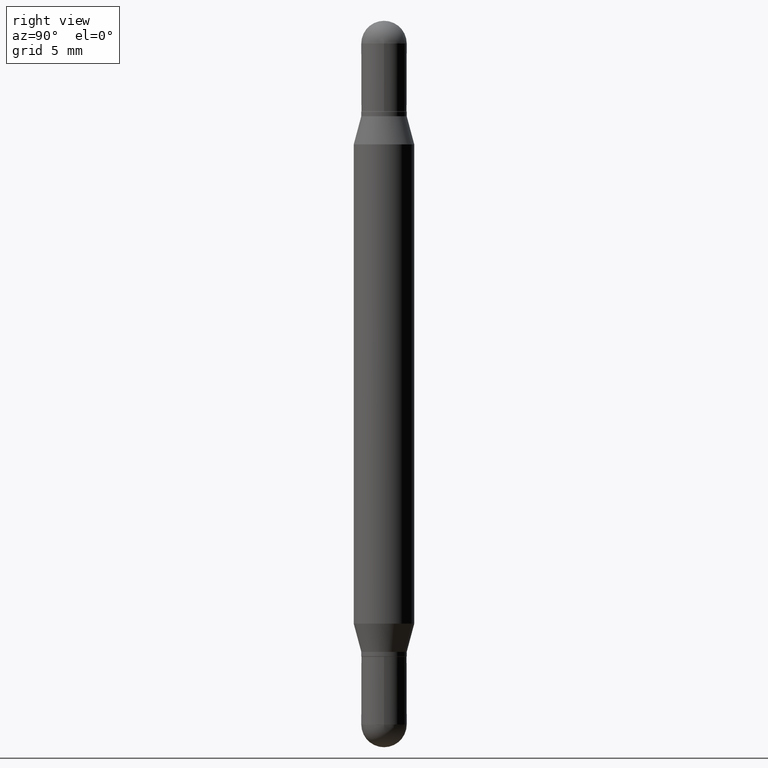
[diagram: clean part render]
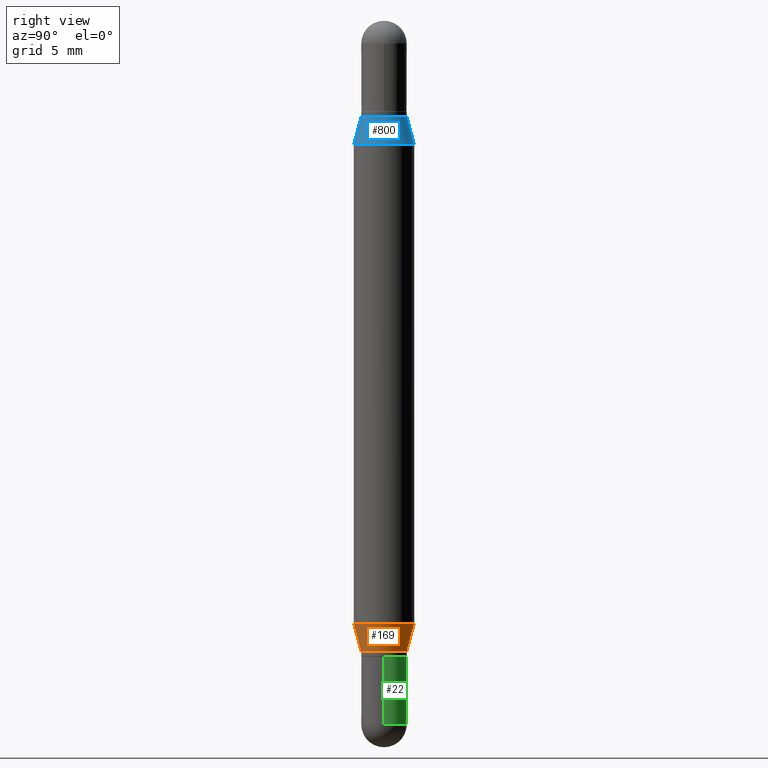
[diagram: same view with three faces highlighted in distinct colors, each labeled with its STEP entity id]
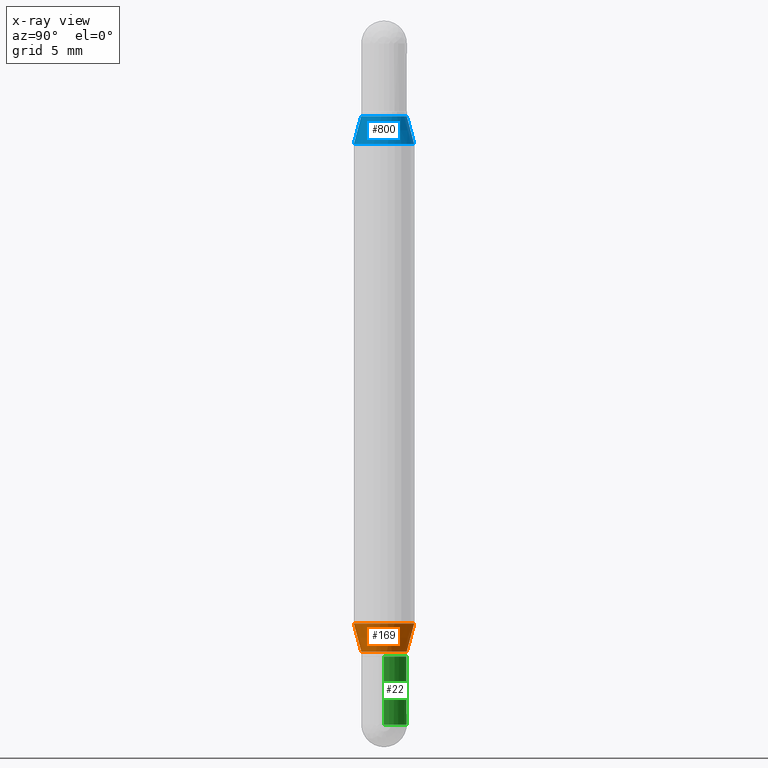
[diagram: x-ray of the same camera — body ghosted, the three highlighted faces saturated]
A machine part, right view with three faces highlighted in distinct colors.
The next image is the same camera in x-ray (body ghosted, the three faces saturated) — at least one of them is partly hidden behind the body in this view.
Their STEP definitions:

[orange] entity #169 — the highlighted conical surface has half-angle 15 deg.
#61 = DIRECTION ( 'NONE',  ( -2.445369915949094661E-29, 3.491622955289640128E-15, 1.000000000000000000 ) ) ;
#129 = VERTEX_POINT ( 'NONE', #799 ) ;
#135 = DIRECTION ( 'NONE',  ( -2.445369915949094661E-29, 3.491622955289640128E-15, 1.000000000000000000 ) ) ;
#140 = AXIS2_PLACEMENT_3D ( 'NONE', #400, #135, #664 ) ;
#164 = CARTESIAN_POINT ( 'NONE',  ( 3.043947582075560243E-29, -4.346302448130172457E-15, -1.244780007401925737 ) ) ;
#166 = EDGE_CURVE ( 'NONE', #490, #670, #1040, .T. ) ;
#169 = ADVANCED_FACE ( 'NONE', ( #493 ), #1025, .T. ) ;
#247 = ORIENTED_EDGE ( 'NONE', *, *, #166, .F. ) ;
#299 = VECTOR ( 'NONE', #942, 39.37007874015747433 ) ;
#319 = EDGE_CURVE ( 'NONE', #615, #490, #604, .T. ) ;
#343 = CIRCLE ( 'NONE', #140, 0.04689999999999991398 ) ;
#373 = AXIS2_PLACEMENT_3D ( 'NONE', #164, #61, #407 ) ;
#397 = CARTESIAN_POINT ( 'NONE',  ( 3.186317000481670584E-29, -4.549584710742400946E-15, -1.302999999999999936 ) ) ;
#400 = CARTESIAN_POINT ( 'NONE',  ( 3.186317000481670584E-29, -4.549584710742400946E-15, -1.302999999999999936 ) ) ;
#405 = ORIENTED_EDGE ( 'NONE', *, *, #319, .F. ) ;
#407 = DIRECTION ( 'NONE',  ( -6.982962677686265922E-15, -1.000000000000000000, 4.370956789862821150E-15 ) ) ;
#416 = LINE ( 'NONE', #651, #501 ) ;
#474 = CARTESIAN_POINT ( 'NONE',  ( 4.287811248607390144E-16, 0.06249999999999565625, -1.244780007401925959 ) ) ;
#490 = VERTEX_POINT ( 'NONE', #977 ) ;
#493 = FACE_OUTER_BOUND ( 'NONE', #845, .T. ) ;
#501 = VECTOR ( 'NONE', #836, 39.37007874015748854 ) ;
#595 = DIRECTION ( 'NONE',  ( -6.982962677686266711E-15, -1.000000000000000000, 5.824835807386499253E-15 ) ) ;
#600 = CARTESIAN_POINT ( 'NONE',  ( -3.275009495834534605E-16, -0.04690000000000446589, -1.302999999999999714 ) ) ;
#603 = EDGE_CURVE ( 'NONE', #615, #129, #343, .T. ) ;
#604 = LINE ( 'NONE', #600, #299 ) ;
#615 = VERTEX_POINT ( 'NONE', #647 ) ;
#647 = CARTESIAN_POINT ( 'NONE',  ( -3.275009495834534605E-16, -0.04690000000000446589, -1.302999999999999714 ) ) ;
#651 = CARTESIAN_POINT ( 'NONE',  ( 3.332445430715181769E-16, 0.04689999999999536207, -1.303000000000000380 ) ) ;
#664 = DIRECTION ( 'NONE',  ( -6.982962677686266711E-15, -1.000000000000000000, 5.824835807386499253E-15 ) ) ;
#669 = ORIENTED_EDGE ( 'NONE', *, *, #603, .T. ) ;
#670 = VERTEX_POINT ( 'NONE', #474 ) ;
#796 = EDGE_CURVE ( 'NONE', #129, #670, #416, .T. ) ;
#799 = CARTESIAN_POINT ( 'NONE',  ( 3.332445430715184234E-16, 0.04689999999999536207, -1.303000000000000380 ) ) ;
#812 = ORIENTED_EDGE ( 'NONE', *, *, #796, .T. ) ;
#836 = DIRECTION ( 'NONE',  ( 1.839019923739608598E-15, 0.2588190451025261241, 0.9659258262890667579 ) ) ;
#845 = EDGE_LOOP ( 'NONE', ( #669, #812, #247, #405 ) ) ;
#923 = DIRECTION ( 'NONE',  ( -2.445369915949094661E-29, 3.491622955289640128E-15, 1.000000000000000000 ) ) ;
#942 = DIRECTION ( 'NONE',  ( -1.807323732225339211E-15, -0.2588190451025194627, 0.9659258262890687563 ) ) ;
#977 = CARTESIAN_POINT ( 'NONE',  ( -4.364351673553611504E-16, -0.06250000000000434375, -1.244780007401925515 ) ) ;
#1003 = AXIS2_PLACEMENT_3D ( 'NONE', #397, #923, #595 ) ;
#1025 = CONICAL_SURFACE ( 'NONE', #1003, 0.04689999999999991398, 0.2617993877991515173 ) ;
#1040 = CIRCLE ( 'NONE', #373, 0.06250000000000000000 ) ;

[blue] entity #800 — the highlighted conical surface has half-angle 15 deg.
#1 = CARTESIAN_POINT ( 'NONE',  ( -3.275009495834534605E-16, -0.04690000000000060787, -0.1969999999999993978 ) ) ;
#20 = DIRECTION ( 'NONE',  ( -6.982962677686266711E-15, -1.000000000000000000, 3.640522379616562132E-15 ) ) ;
#37 = EDGE_CURVE ( 'NONE', #96, #238, #983, .T. ) ;
#88 = VECTOR ( 'NONE', #172, 39.37007874015747433 ) ;
#95 = DIRECTION ( 'NONE',  ( -1.807323732225338422E-15, -0.2588190451025261241, -0.9659258262890667579 ) ) ;
#96 = VERTEX_POINT ( 'NONE', #128 ) ;
#128 = CARTESIAN_POINT ( 'NONE',  ( -3.275009495834534605E-16, -0.04690000000000060787, -0.1969999999999993978 ) ) ;
#144 = CARTESIAN_POINT ( 'NONE',  ( -4.364351673553612490E-16, -0.06250000000000090206, -0.2552199925980737083 ) ) ;
#145 = CARTESIAN_POINT ( 'NONE',  ( 3.186317000481670584E-29, -6.945687301234005210E-16, -0.1969999999999995643 ) ) ;
#151 = DIRECTION ( 'NONE',  ( -2.445369915949094661E-29, -3.479472850531333708E-15, -1.000000000000000000 ) ) ;
#160 = DIRECTION ( 'NONE',  ( 2.445369915949094661E-29, 3.479472850531333708E-15, 1.000000000000000000 ) ) ;
#171 = VERTEX_POINT ( 'NONE', #144 ) ;
#172 = DIRECTION ( 'NONE',  ( 1.775627540710973780E-15, 0.2588190451025194627, -0.9659258262890687563 ) ) ;
#175 = LINE ( 'NONE', #1, #1055 ) ;
#194 = AXIS2_PLACEMENT_3D ( 'NONE', #927, #160, #1105 ) ;
#211 = DIRECTION ( 'NONE',  ( 2.445369915949094661E-29, 3.479472850531333708E-15, 1.000000000000000000 ) ) ;
#237 = FACE_OUTER_BOUND ( 'NONE', #972, .T. ) ;
#238 = VERTEX_POINT ( 'NONE', #849 ) ;
#264 = CARTESIAN_POINT ( 'NONE',  ( 3.217573560955160465E-16, 0.04689999999999922009, -0.1969999999999997309 ) ) ;
#269 = CONICAL_SURFACE ( 'NONE', #478, 0.04689999999999991398, 0.2617993877991515173 ) ;
#273 = ORIENTED_EDGE ( 'NONE', *, *, #707, .T. ) ;
#382 = EDGE_CURVE ( 'NONE', #96, #171, #175, .T. ) ;
#384 = CARTESIAN_POINT ( 'NONE',  ( 3.186317000481670584E-29, -6.945687301234005210E-16, -0.1969999999999995643 ) ) ;
#417 = ORIENTED_EDGE ( 'NONE', *, *, #976, .F. ) ;
#478 = AXIS2_PLACEMENT_3D ( 'NONE', #145, #151, #829 ) ;
#530 = ORIENTED_EDGE ( 'NONE', *, *, #37, .F. ) ;
#707 = EDGE_CURVE ( 'NONE', #171, #1106, #1056, .T. ) ;
#790 = AXIS2_PLACEMENT_3D ( 'NONE', #384, #211, #20 ) ;
#800 = ADVANCED_FACE ( 'NONE', ( #237 ), #269, .T. ) ;
#829 = DIRECTION ( 'NONE',  ( -6.982962677686266711E-15, -1.000000000000000000, 3.640522379616562132E-15 ) ) ;
#849 = CARTESIAN_POINT ( 'NONE',  ( 3.217573560955161944E-16, 0.04689999999999922009, -0.1969999999999997309 ) ) ;
#851 = LINE ( 'NONE', #264, #88 ) ;
#927 = CARTESIAN_POINT ( 'NONE',  ( 3.043947582075560243E-29, -8.971436137265360818E-16, -0.2552199925980738748 ) ) ;
#972 = EDGE_LOOP ( 'NONE', ( #417, #530, #1085, #273 ) ) ;
#976 = EDGE_CURVE ( 'NONE', #238, #1106, #851, .T. ) ;
#983 = CIRCLE ( 'NONE', #790, 0.04689999999999991398 ) ;
#1048 = CARTESIAN_POINT ( 'NONE',  ( 4.287811248607510938E-16, 0.06249999999999910488, -0.2552199925980740969 ) ) ;
#1055 = VECTOR ( 'NONE', #95, 39.37007874015748854 ) ;
#1056 = CIRCLE ( 'NONE', #194, 0.06250000000000000000 ) ;
#1085 = ORIENTED_EDGE ( 'NONE', *, *, #382, .T. ) ;
#1105 = DIRECTION ( 'NONE',  ( -6.982962677686265922E-15, -1.000000000000000000, 3.278217592397115862E-15 ) ) ;
#1106 = VERTEX_POINT ( 'NONE', #1048 ) ;

[green] entity #22 — the highlighted cylindrical surface (edge-blend (fillet) strip) has radius 1.1913 mm, axis along (-0, 0, 1).
#22 = ADVANCED_FACE ( 'NONE', ( #632 ), #555, .T. ) ;
#25 = CIRCLE ( 'NONE', #44, 0.04689999999999999725 ) ;
#27 = VECTOR ( 'NONE', #64, 39.37007874015748143 ) ;
#32 = DIRECTION ( 'NONE',  ( 1.000000000000000000, -6.982962677686266711E-15, 4.876176775795936353E-29 ) ) ;
#44 = AXIS2_PLACEMENT_3D ( 'NONE', #312, #649, #997 ) ;
#50 = DIRECTION ( 'NONE',  ( -2.445468806185136597E-29, 3.491481338843145583E-15, 1.000000000000000000 ) ) ;
#51 = ORIENTED_EDGE ( 'NONE', *, *, #289, .T. ) ;
#64 = DIRECTION ( 'NONE',  ( -2.445468806185136877E-29, 3.491481338843145188E-15, 1.000000000000000000 ) ) ;
#66 = EDGE_CURVE ( 'NONE', #212, #839, #540, .T. ) ;
#68 = CARTESIAN_POINT ( 'NONE',  ( -0.04689999999999999725, -4.495648722615525747E-15, -1.313000000000000167 ) ) ;
#101 = AXIS2_PLACEMENT_3D ( 'NONE', #255, #50, #1084 ) ;
#162 = AXIS2_PLACEMENT_3D ( 'NONE', #808, #901, #32 ) ;
#174 = VERTEX_POINT ( 'NONE', #332 ) ;
#212 = VERTEX_POINT ( 'NONE', #420 ) ;
#224 = CARTESIAN_POINT ( 'NONE',  ( -0.04689999999999999725, 3.332445430714869676E-16, -2.306980557329550952E-30 ) ) ;
#227 = CARTESIAN_POINT ( 'NONE',  ( 3.553510722267622201E-29, -5.073471533472974042E-15, -1.453099999999999836 ) ) ;
#242 = CARTESIAN_POINT ( 'NONE',  ( 0.04689999999999999725, -4.911815947484537290E-15, -1.313000000000000167 ) ) ;
#255 = CARTESIAN_POINT ( 'NONE',  ( 3.553510722267622201E-29, -5.073471533472974042E-15, -1.453099999999999836 ) ) ;
#257 = ORIENTED_EDGE ( 'NONE', *, *, #279, .T. ) ;
#279 = EDGE_CURVE ( 'NONE', #174, #999, #841, .T. ) ;
#281 = EDGE_CURVE ( 'NONE', #839, #672, #25, .T. ) ;
#289 = EDGE_CURVE ( 'NONE', #212, #174, #1110, .T. ) ;
#292 = CARTESIAN_POINT ( 'NONE',  ( 0.04689999999999999725, -3.275009495834859024E-16, 2.286926907848294038E-30 ) ) ;
#312 = CARTESIAN_POINT ( 'NONE',  ( 3.210900542521084585E-29, -4.584314997901050598E-15, -1.313000000000000167 ) ) ;
#332 = CARTESIAN_POINT ( 'NONE',  ( 3.275009495835214505E-16, 0.04689999999999493185, -1.453100000000000058 ) ) ;
#363 = ORIENTED_EDGE ( 'NONE', *, *, #66, .F. ) ;
#420 = CARTESIAN_POINT ( 'NONE',  ( 0.04689999999999999725, -5.156394215270499012E-15, -1.453099999999999836 ) ) ;
#428 = AXIS2_PLACEMENT_3D ( 'NONE', #227, #569, #913 ) ;
#540 = LINE ( 'NONE', #292, #1118 ) ;
#555 = CYLINDRICAL_SURFACE ( 'NONE', #162, 0.04689999999999999725 ) ;
#569 = DIRECTION ( 'NONE',  ( -2.445468806185136597E-29, 3.491481338843145583E-15, 1.000000000000000000 ) ) ;
#602 = EDGE_LOOP ( 'NONE', ( #257, #941, #737, #363, #51 ) ) ;
#632 = FACE_OUTER_BOUND ( 'NONE', #602, .T. ) ;
#649 = DIRECTION ( 'NONE',  ( -2.445468806185136597E-29, 3.491481338843145583E-15, 1.000000000000000000 ) ) ;
#672 = VERTEX_POINT ( 'NONE', #68 ) ;
#716 = CARTESIAN_POINT ( 'NONE',  ( -0.04689999999999999725, -4.495648722615525747E-15, -1.453099999999999836 ) ) ;
#726 = DIRECTION ( 'NONE',  ( -2.445468806185136877E-29, 3.491481338843145188E-15, 1.000000000000000000 ) ) ;
#737 = ORIENTED_EDGE ( 'NONE', *, *, #281, .F. ) ;
#795 = EDGE_CURVE ( 'NONE', #999, #672, #1087, .T. ) ;
#808 = CARTESIAN_POINT ( 'NONE',  ( 0.000000000000000000, 0.000000000000000000, 0.000000000000000000 ) ) ;
#839 = VERTEX_POINT ( 'NONE', #242 ) ;
#841 = CIRCLE ( 'NONE', #101, 0.04689999999999999725 ) ;
#901 = DIRECTION ( 'NONE',  ( -2.445468806185136597E-29, 3.491481338843145583E-15, 1.000000000000000000 ) ) ;
#913 = DIRECTION ( 'NONE',  ( 1.000000000000000000, -6.982962677686277755E-15, 0.000000000000000000 ) ) ;
#941 = ORIENTED_EDGE ( 'NONE', *, *, #795, .T. ) ;
#997 = DIRECTION ( 'NONE',  ( 1.000000000000000000, -6.982962677686277755E-15, 0.000000000000000000 ) ) ;
#999 = VERTEX_POINT ( 'NONE', #716 ) ;
#1084 = DIRECTION ( 'NONE',  ( 1.000000000000000000, -6.982962677686277755E-15, 0.000000000000000000 ) ) ;
#1087 = LINE ( 'NONE', #224, #27 ) ;
#1110 = CIRCLE ( 'NONE', #428, 0.04689999999999999725 ) ;
#1118 = VECTOR ( 'NONE', #726, 39.37007874015748143 ) ;